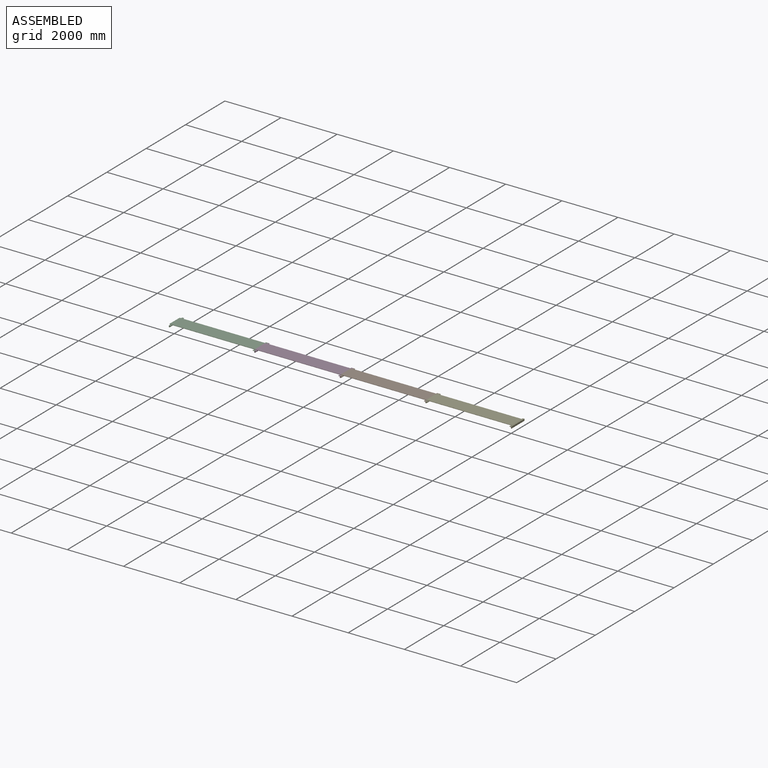
[diagram: assembled view]
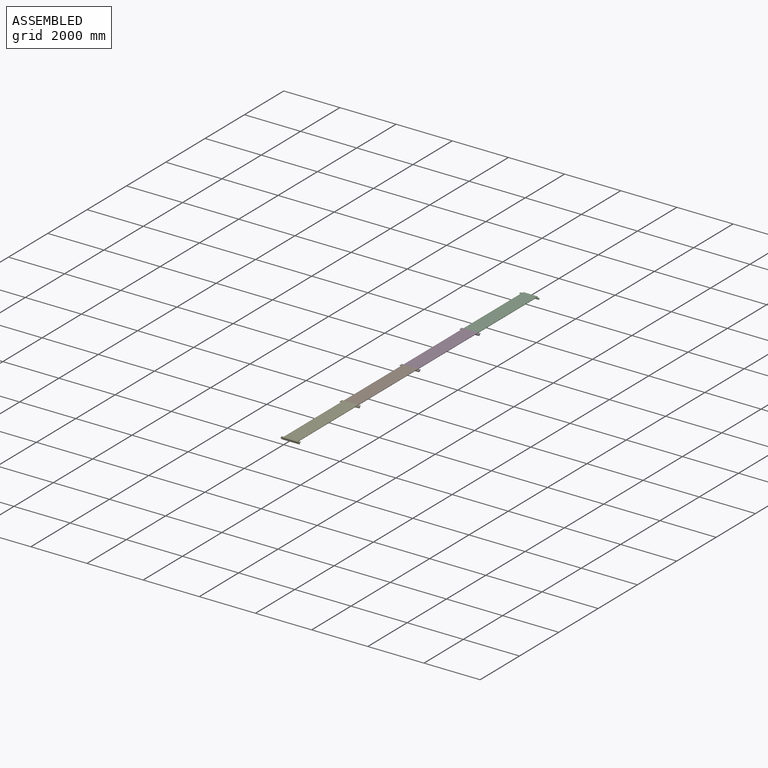
[diagram: assembled view, second angle]
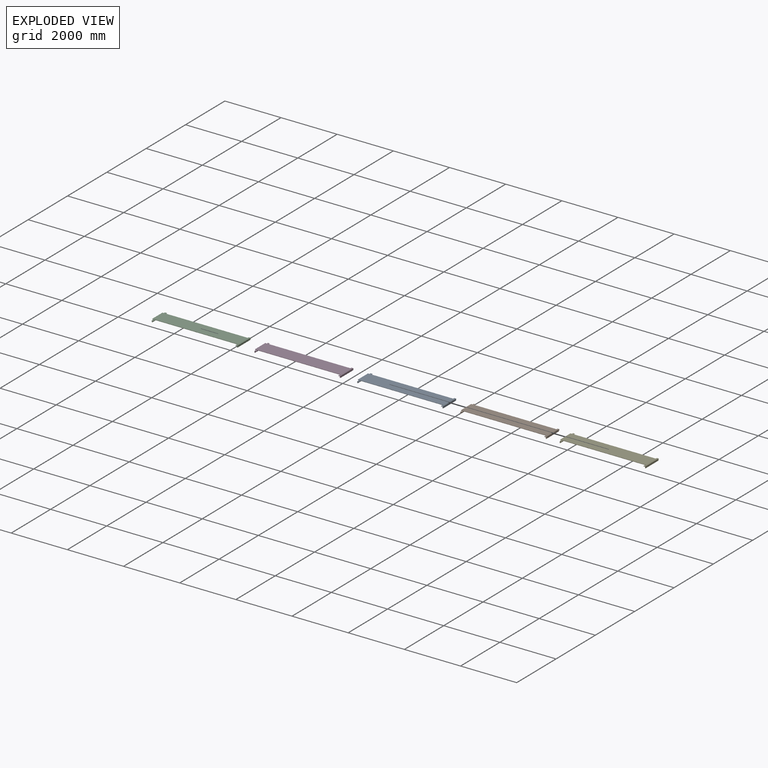
[diagram: exploded view]
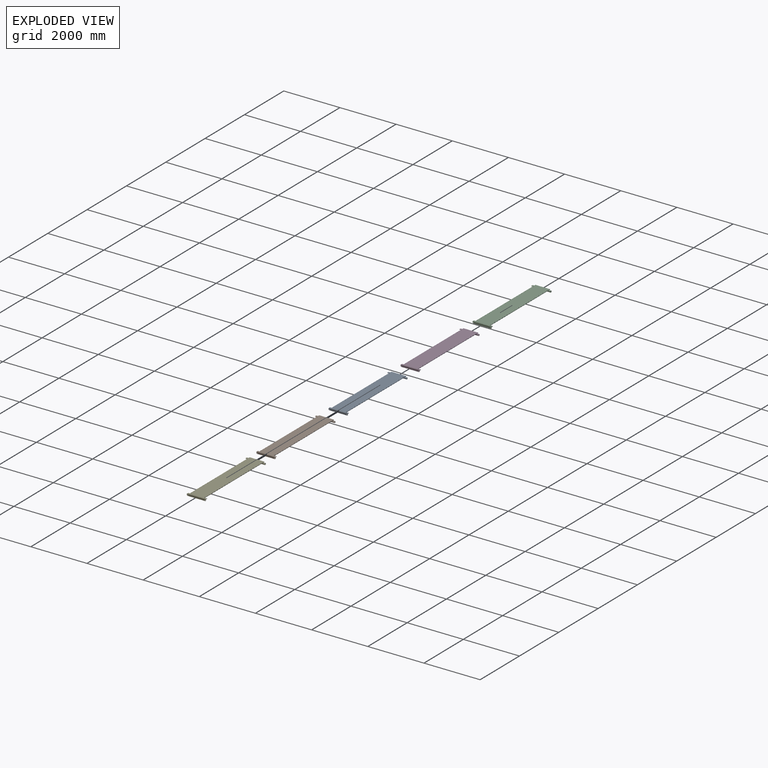
[diagram: exploded view, second angle]
ASSEMBLY  parts=5 mates=4
PART A: 62 faces, bbox 3085x675x77 mm
  f0: plane 2917x525mm, normal (0,0,-1), area 1526123.6mm2, adj f2,f3,f4,f5,f6,f7,f8,f9
  f1: plane 525x26mm, normal (0,0,-1), area 13650mm2, adj f2,f3,f35,f39
  f2: plane 3060x12mm, normal (0,-1,0), area 36576mm2, adj f0,f1,f34,f35,f36,f37,f46
  f3: plane 3060x12mm, normal (0,1,0), area 36576mm2, adj f0,f1,f34,f35,f36,f38,f46
  f4: cylinder r=7.5mm len=15mm, axis (0,0,-1), area 565.5mm2, adj f0,f34
  f5: cylinder r=7.5mm len=15mm, axis (0,0,-1), area 565.5mm2, adj f0,f34
  f6: cylinder r=7.5mm len=15mm, axis (0,0,-1), area 565.5mm2, adj f0,f34
  f7: cylinder r=7.5mm len=15mm, axis (0,0,-1), area 565.5mm2, adj f0,f34
  f8: cylinder r=7.5mm len=15mm, axis (0,0,-1), area 565.5mm2, adj f0,f34
  f9: cylinder r=7.5mm len=15mm, axis (0,0,-1), area 565.5mm2, adj f0,f34
  f10: cylinder r=7.5mm len=15mm, axis (0,0,-1), area 565.5mm2, adj f0,f34
  f11: cylinder r=7.5mm len=15mm, axis (0,0,-1), area 565.5mm2, adj f0,f34
  f12: cylinder r=7.5mm len=15mm, axis (0,0,-1), area 565.5mm2, adj f0,f34
  f13: cylinder r=7.5mm len=15mm, axis (0,0,-1), area 565.5mm2, adj f0,f34
  f14: cylinder r=7.5mm len=15mm, axis (0,0,-1), area 565.5mm2, adj f0,f34
  f15: cylinder r=7.5mm len=15mm, axis (0,0,-1), area 565.5mm2, adj f0,f34
  f16: cylinder r=7.5mm len=15mm, axis (0,0,-1), area 565.5mm2, adj f0,f34
  f17: cylinder r=7.5mm len=15mm, axis (0,0,-1), area 565.5mm2, adj f0,f34
  f18: cylinder r=7.5mm len=15mm, axis (0,0,-1), area 565.5mm2, adj f0,f34
  f19: cylinder r=7.5mm len=15mm, axis (0,0,-1), area 565.5mm2, adj f0,f34
  f20: cylinder r=7.5mm len=15mm, axis (0,0,-1), area 565.5mm2, adj f0,f34
  f21: cylinder r=7.5mm len=15mm, axis (0,0,-1), area 565.5mm2, adj f0,f34
  f22: cylinder r=7.5mm len=15mm, axis (0,0,-1), area 565.5mm2, adj f0,f34
  f23: cylinder r=7.5mm len=15mm, axis (0,0,-1), area 565.5mm2, adj f0,f34
  f24: cylinder r=7.5mm len=15mm, axis (0,0,-1), area 565.5mm2, adj f0,f34
  f25: cylinder r=7.5mm len=15mm, axis (0,0,-1), area 565.5mm2, adj f0,f34
  f26: cylinder r=7.5mm len=15mm, axis (0,0,-1), area 565.5mm2, adj f0,f34
  f27: cylinder r=7.5mm len=15mm, axis (0,0,-1), area 565.5mm2, adj f0,f34
  f28: cylinder r=7.5mm len=15mm, axis (0,0,-1), area 565.5mm2, adj f0,f34
  f29: cylinder r=7.5mm len=15mm, axis (0,0,-1), area 565.5mm2, adj f0,f34
  f30: cylinder r=7.5mm len=15mm, axis (0,0,-1), area 565.5mm2, adj f0,f34
  f31: cylinder r=7.5mm len=15mm, axis (0,0,-1), area 565.5mm2, adj f0,f34
  f32: cylinder r=7.5mm len=15mm, axis (0,0,-1), area 565.5mm2, adj f0,f34
  f33: cylinder r=7.5mm len=15mm, axis (0,0,-1), area 565.5mm2, adj f0,f34
  f34: plane 3048x525mm, normal (0,0,1), area 1594898.6mm2, adj f2,f3,f4,f5,f6,f7,f8,f9
  f35: plane 525x12mm, normal (-0.71,0,-0.71), area 8909.5mm2, adj f1,f2,f3,f34
  f36: plane 525x12mm, normal (0.71,0,0.71), area 8909.5mm2, adj f2,f3,f34,f46
  f37: plane 75x65mm, normal (0,0,1), area 4875mm2, adj f2,f39,f43,f44
  f38: plane 75x65mm, normal (0,0,1), area 4875mm2, adj f3,f39,f43,f45
  f39: plane 675x65mm, normal (-1,0,0), area 42668.3mm2, adj f1,f37,f38,f40,f44,f45,f56,f57
  f40: plane 645x10mm, normal (0,0,-1), area 6450mm2, adj f39,f41,f56,f57
  f41: plane 675x55mm, normal (1,0,0), area 35918.3mm2, adj f40,f42,f44,f45,f56,f57,f60,f61
  f42: plane 675x55mm, normal (0,0,-1), area 37125mm2, adj f41,f43,f44,f45
  f43: plane 675x10mm, normal (1,0,0), area 6750mm2, adj f0,f37,f38,f42,f44,f45
  f44: plane 65x50mm, normal (0,-1,0), area 1050mm2, adj f37,f39,f41,f42,f43,f56
  f45: plane 65x50mm, normal (0,1,0), area 1050mm2, adj f38,f39,f41,f42,f43,f57
  f46: plane 675x65mm, normal (0,0,1), area 22875mm2, adj f2,f3,f36,f47,f51,f52,f53
  f47: plane 675x10mm, normal (-1,0,0), area 6750mm2, adj f0,f46,f48,f52,f53
  f48: plane 675x55mm, normal (0,0,-1), area 37125mm2, adj f47,f49,f52,f53
  f49: plane 675x55mm, normal (-1,0,0), area 35918.3mm2, adj f48,f50,f52,f53,f54,f55,f58,f59
  f50: plane 645x10mm, normal (0,0,-1), area 6450mm2, adj f49,f51,f54,f55
  f51: plane 675x65mm, normal (1,0,0), area 42668.3mm2, adj f46,f50,f52,f53,f54,f55,f58,f59
  f52: plane 65x50mm, normal (0,-1,0), area 1050mm2, adj f46,f47,f48,f49,f51,f55
  f53: plane 65x50mm, normal (0,1,0), area 1050mm2, adj f46,f47,f48,f49,f51,f54
  f54: plane 15x15mm, normal (0,0.71,-0.71), area 212.1mm2, adj f49,f50,f51,f53
  f55: plane 15x15mm, normal (0,-0.71,-0.71), area 212.1mm2, adj f49,f50,f51,f52
  f56: plane 15x15mm, normal (0,-0.71,-0.71), area 212.1mm2, adj f39,f40,f41,f44
  f57: plane 15x15mm, normal (0,0.71,-0.71), area 212.1mm2, adj f39,f40,f41,f45
  f58: cylinder r=12.5mm len=25mm, axis (1,0,0), area 785.4mm2, adj f49,f51
  f59: cylinder r=12.5mm len=25mm, axis (1,0,0), area 785.4mm2, adj f49,f51
  f60: cylinder r=12.5mm len=25mm, axis (1,0,0), area 785.4mm2, adj f39,f41
  f61: cylinder r=12.5mm len=25mm, axis (1,0,0), area 785.4mm2, adj f39,f41
PART B: same geometry as A
PART C: same geometry as A
PART D: same geometry as A
PART E: same geometry as A
PLACE A t=(-4554.47,-1728.02,-439.41)mm
PLACE B t=(-4554.47,-1728.02,-439.41)mm
PLACE C t=(-10648.47,-1728.02,-439.41)mm
PLACE D t=(-7601.47,-1728.02,-439.41)mm
PLACE E t=(-1507.47,-1728.02,-439.41)mm fixed
MATE fastened D.f58 <-> A.f58  axis (1,0,0) through (-6046.47,-1415.52,-479.41)mm
MATE fastened D.f58 <-> C.f58  axis (-1,0,0) through (-9093.47,-1415.52,-479.41)mm
MATE fastened D.f58 <-> B.f58  axis (1,0,0) through (-6046.47,-1415.52,-479.41)mm
MATE fastened B.f58 <-> E.f58  axis (1,0,0) through (-2999.47,-1415.52,-479.41)mm
